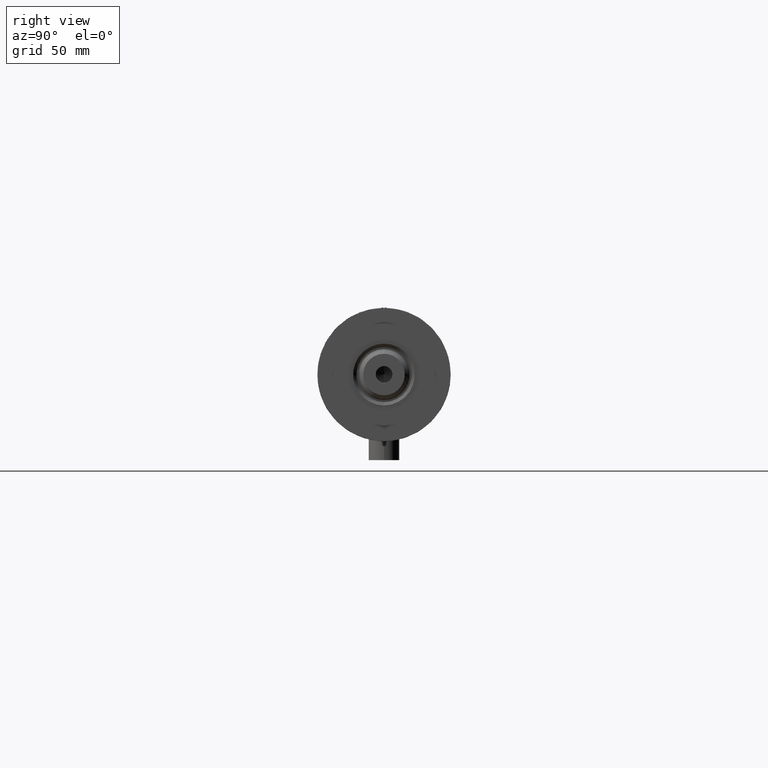
[diagram: clean part render]
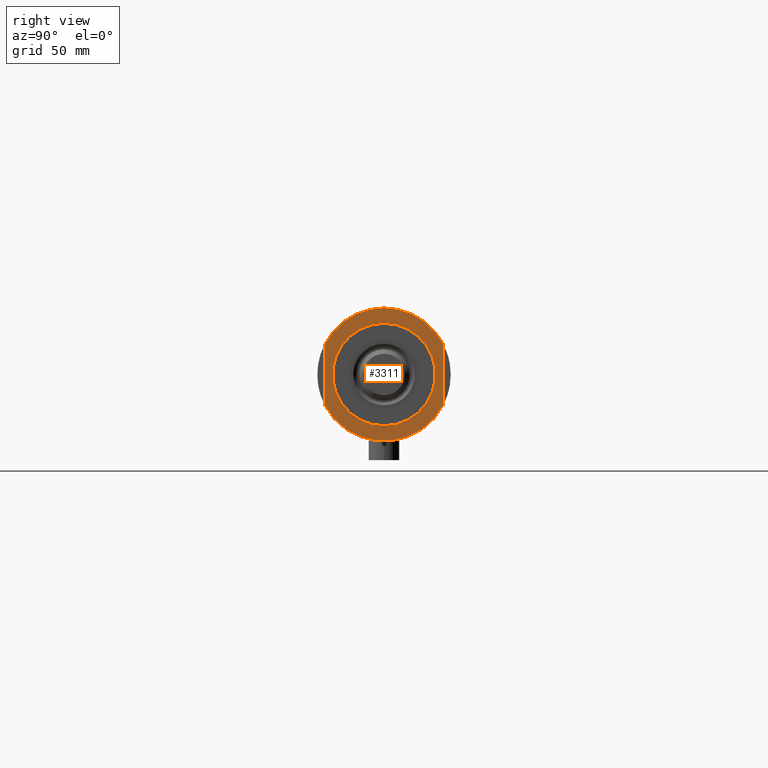
[diagram: same view with one face highlighted and labeled with its STEP entity id]
A machine part, right view. The second image highlights one B-rep face of the part: STEP entity #3311.
In plain terms, the highlighted planar face has unit normal (1, 0, -0).
Its self-contained STEP definition (entity closure, byte-faithful):
#37 = CIRCLE ( 'NONE', #1631, 26.00000000000000355 ) ;
#75 = DIRECTION ( 'NONE',  ( -0.000000000000000000, -0.000000000000000000, -1.000000000000000000 ) ) ;
#90 = EDGE_CURVE ( 'NONE', #3027, #1209, #3057, .T. ) ;
#148 = CARTESIAN_POINT ( 'NONE',  ( 0.000000000000000000, 0.000000000000000000, 15.50000000000000000 ) ) ;
#190 = CARTESIAN_POINT ( 'NONE',  ( -20.00000000000000000, 2.449293598294706513E-15, 15.50000000000000000 ) ) ;
#284 = ORIENTED_EDGE ( 'NONE', *, *, #1288, .T. ) ;
#342 = EDGE_LOOP ( 'NONE', ( #2811, #2195 ) ) ;
#535 = DIRECTION ( 'NONE',  ( 1.000000000000000000, 0.000000000000000000, -0.000000000000000000 ) ) ;
#557 = VERTEX_POINT ( 'NONE', #2305 ) ;
#737 = VERTEX_POINT ( 'NONE', #2117 ) ;
#743 = ORIENTED_EDGE ( 'NONE', *, *, #3255, .F. ) ;
#910 = EDGE_CURVE ( 'NONE', #1209, #557, #37, .T. ) ;
#1209 = VERTEX_POINT ( 'NONE', #1665 ) ;
#1288 = EDGE_CURVE ( 'NONE', #5130, #737, #2315, .T. ) ;
#1336 = DIRECTION ( 'NONE',  ( 0.000000000000000000, 0.000000000000000000, 1.000000000000000000 ) ) ;
#1347 = EDGE_LOOP ( 'NONE', ( #743, #284, #4528, #4477, #3446 ) ) ;
#1409 = CARTESIAN_POINT ( 'NONE',  ( -12.12435565298215145, -22.99999999999999645, 15.50000000000000000 ) ) ;
#1436 = CARTESIAN_POINT ( 'NONE',  ( 0.000000000000000000, 0.000000000000000000, 15.50000000000000000 ) ) ;
#1631 = AXIS2_PLACEMENT_3D ( 'NONE', #2296, #3966, #3915 ) ;
#1657 = DIRECTION ( 'NONE',  ( 1.000000000000000000, 0.000000000000000000, 0.000000000000000000 ) ) ;
#1665 = CARTESIAN_POINT ( 'NONE',  ( -26.00000000000000355, 0.000000000000000000, 15.50000000000000000 ) ) ;
#1797 = VECTOR ( 'NONE', #4999, 1000.000000000000000 ) ;
#1801 = PLANE ( 'NONE',  #4654 ) ;
#1923 = DIRECTION ( 'NONE',  ( 1.000000000000000000, 0.000000000000000000, 0.000000000000000000 ) ) ;
#2117 = CARTESIAN_POINT ( 'NONE',  ( 12.12435565298214790, 23.00000000000000355, 15.50000000000000000 ) ) ;
#2195 = ORIENTED_EDGE ( 'NONE', *, *, #2704, .T. ) ;
#2212 = CARTESIAN_POINT ( 'NONE',  ( -12.12435565298215145, 23.00000000000000355, 15.50000000000000000 ) ) ;
#2236 = CARTESIAN_POINT ( 'NONE',  ( 0.000000000000000000, 0.000000000000000000, 15.50000000000000000 ) ) ;
#2296 = CARTESIAN_POINT ( 'NONE',  ( 0.000000000000000000, 0.000000000000000000, 15.50000000000000000 ) ) ;
#2305 = CARTESIAN_POINT ( 'NONE',  ( -12.12435565298215323, -22.99999999999999645, 15.50000000000000000 ) ) ;
#2315 = CIRCLE ( 'NONE', #2899, 26.00000000000000355 ) ;
#2494 = CARTESIAN_POINT ( 'NONE',  ( -12.12435565298214613, 23.00000000000000355, 15.50000000000000000 ) ) ;
#2517 = DIRECTION ( 'NONE',  ( 1.000000000000000000, 0.000000000000000000, 0.000000000000000000 ) ) ;
#2530 = FACE_BOUND ( 'NONE', #342, .T. ) ;
#2643 = AXIS2_PLACEMENT_3D ( 'NONE', #2236, #3894, #2517 ) ;
#2704 = EDGE_CURVE ( 'NONE', #4800, #4435, #3422, .T. ) ;
#2723 = VECTOR ( 'NONE', #3039, 1000.000000000000000 ) ;
#2725 = AXIS2_PLACEMENT_3D ( 'NONE', #1436, #1336, #3021 ) ;
#2811 = ORIENTED_EDGE ( 'NONE', *, *, #4204, .T. ) ;
#2842 = AXIS2_PLACEMENT_3D ( 'NONE', #4064, #75, #1657 ) ;
#2899 = AXIS2_PLACEMENT_3D ( 'NONE', #3989, #3944, #1923 ) ;
#2989 = LINE ( 'NONE', #1409, #2723 ) ;
#3021 = DIRECTION ( 'NONE',  ( 1.000000000000000000, 0.000000000000000000, 0.000000000000000000 ) ) ;
#3027 = VERTEX_POINT ( 'NONE', #2494 ) ;
#3039 = DIRECTION ( 'NONE',  ( -1.000000000000000000, -0.000000000000000000, -0.000000000000000000 ) ) ;
#3057 = CIRCLE ( 'NONE', #2725, 26.00000000000000355 ) ;
#3066 = FACE_OUTER_BOUND ( 'NONE', #1347, .T. ) ;
#3255 = EDGE_CURVE ( 'NONE', #5130, #557, #2989, .T. ) ;
#3311 = ADVANCED_FACE ( 'NONE', ( #2530, #3066 ), #1801, .T. ) ;
#3403 = LINE ( 'NONE', #2212, #1797 ) ;
#3422 = CIRCLE ( 'NONE', #2842, 20.00000000000000000 ) ;
#3446 = ORIENTED_EDGE ( 'NONE', *, *, #910, .T. ) ;
#3761 = DIRECTION ( 'NONE',  ( 0.000000000000000000, 0.000000000000000000, 1.000000000000000000 ) ) ;
#3778 = EDGE_CURVE ( 'NONE', #3027, #737, #3403, .T. ) ;
#3792 = CARTESIAN_POINT ( 'NONE',  ( 12.12435565298215323, -22.99999999999999645, 15.50000000000000000 ) ) ;
#3819 = CIRCLE ( 'NONE', #2643, 20.00000000000000000 ) ;
#3894 = DIRECTION ( 'NONE',  ( -0.000000000000000000, -0.000000000000000000, -1.000000000000000000 ) ) ;
#3915 = DIRECTION ( 'NONE',  ( 1.000000000000000000, 0.000000000000000000, 0.000000000000000000 ) ) ;
#3944 = DIRECTION ( 'NONE',  ( 0.000000000000000000, 0.000000000000000000, 1.000000000000000000 ) ) ;
#3966 = DIRECTION ( 'NONE',  ( 0.000000000000000000, 0.000000000000000000, 1.000000000000000000 ) ) ;
#3989 = CARTESIAN_POINT ( 'NONE',  ( 0.000000000000000000, 0.000000000000000000, 15.50000000000000000 ) ) ;
#4053 = CARTESIAN_POINT ( 'NONE',  ( 20.00000000000000000, 0.000000000000000000, 15.50000000000000000 ) ) ;
#4064 = CARTESIAN_POINT ( 'NONE',  ( 0.000000000000000000, 0.000000000000000000, 15.50000000000000000 ) ) ;
#4204 = EDGE_CURVE ( 'NONE', #4435, #4800, #3819, .T. ) ;
#4435 = VERTEX_POINT ( 'NONE', #4053 ) ;
#4477 = ORIENTED_EDGE ( 'NONE', *, *, #90, .T. ) ;
#4528 = ORIENTED_EDGE ( 'NONE', *, *, #3778, .F. ) ;
#4654 = AXIS2_PLACEMENT_3D ( 'NONE', #148, #3761, #535 ) ;
#4800 = VERTEX_POINT ( 'NONE', #190 ) ;
#4999 = DIRECTION ( 'NONE',  ( 1.000000000000000000, 0.000000000000000000, 0.000000000000000000 ) ) ;
#5130 = VERTEX_POINT ( 'NONE', #3792 ) ;